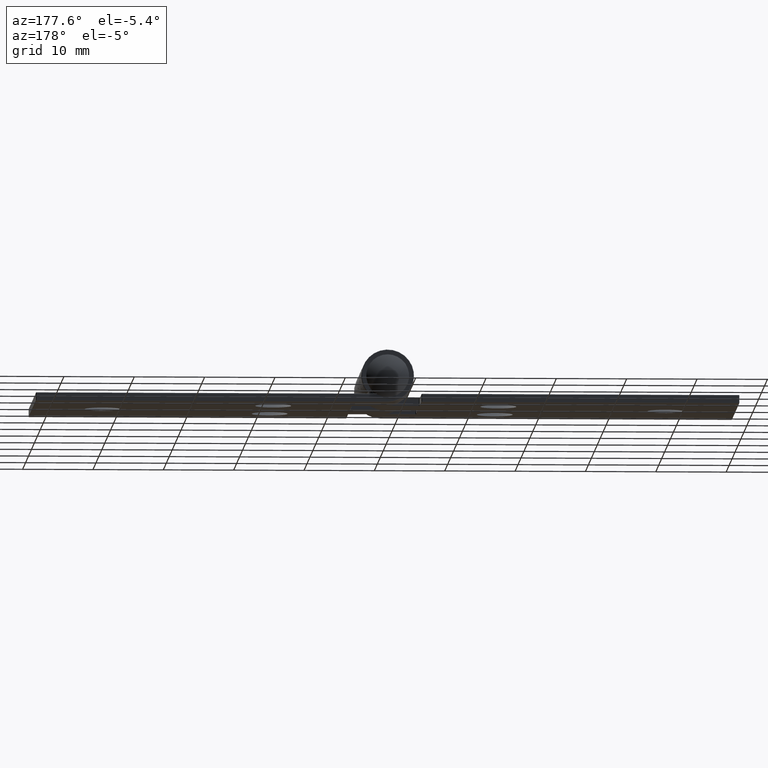
[diagram: clean part render]
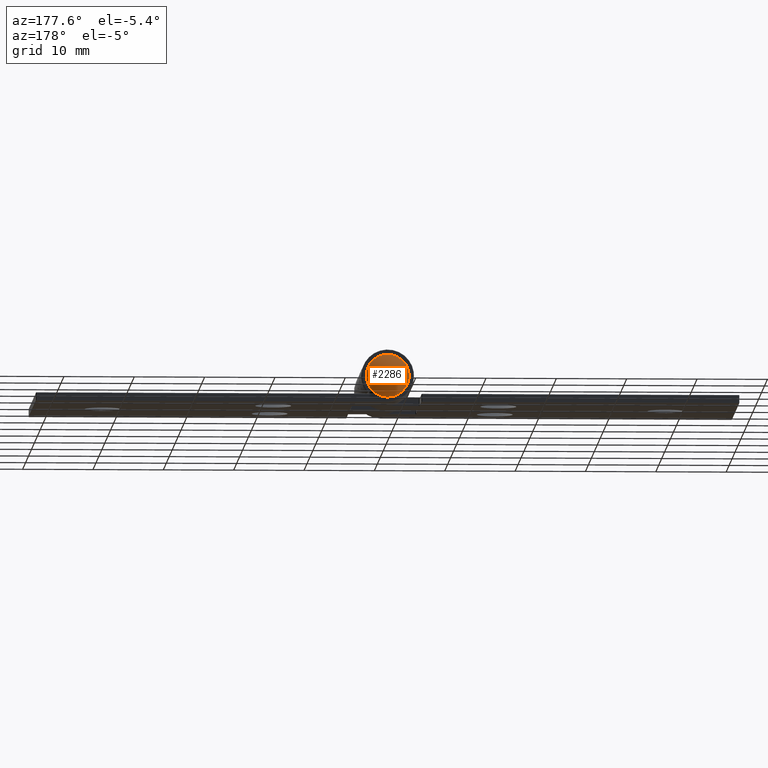
[diagram: same view with one face highlighted and labeled with its STEP entity id]
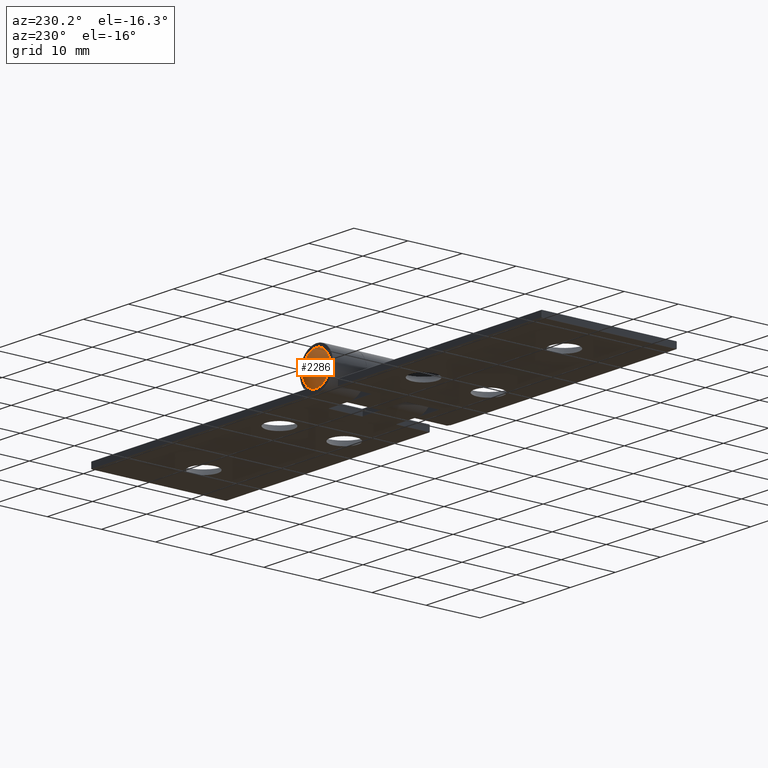
[diagram: same view with one face highlighted and labeled with its STEP entity id]
A machine part, auxiliary view. The second image highlights one B-rep face of the part: STEP entity #2286.
A second angle (auxiliary view) of the same face is appended — the face is thin or edge-on in the first view.
In plain terms, the highlighted spherical surface has radius 5.1513 mm.
Its self-contained STEP definition (entity closure, byte-faithful):
#1594 = DIRECTION ( 'NONE',  ( 0.000000000000000000, 0.000000000000000000, 1.000000000000000000 ) ) ;
#2114 = SPHERICAL_SURFACE ( 'NONE', #2931, 5.151250000000002771 ) ;
#2286 = ADVANCED_FACE ( 'NONE', ( #2637 ), #2114, .T. ) ;
#2394 = EDGE_CURVE ( 'NONE', #2468, #2468, #4185, .T. ) ;
#2468 = VERTEX_POINT ( 'NONE', #3048 ) ;
#2637 = FACE_OUTER_BOUND ( 'NONE', #3425, .T. ) ;
#2931 = AXIS2_PLACEMENT_3D ( 'NONE', #3537, #1594, #3516 ) ;
#3048 = CARTESIAN_POINT ( 'NONE',  ( 0.000000000000000000, 12.55000000000000071, -3.049999999999999378 ) ) ;
#3425 = EDGE_LOOP ( 'NONE', ( #3777 ) ) ;
#3516 = DIRECTION ( 'NONE',  ( 1.000000000000000000, 0.000000000000000000, 0.000000000000000000 ) ) ;
#3537 = CARTESIAN_POINT ( 'NONE',  ( 0.000000000000000000, 8.398749999999996163, 0.000000000000000000 ) ) ;
#3649 = DIRECTION ( 'NONE',  ( 0.000000000000000000, 0.000000000000000000, -1.000000000000000000 ) ) ;
#3777 = ORIENTED_EDGE ( 'NONE', *, *, #2394, .F. ) ;
#3853 = AXIS2_PLACEMENT_3D ( 'NONE', #4047, #4007, #3649 ) ;
#4007 = DIRECTION ( 'NONE',  ( -0.000000000000000000, -1.000000000000000000, -0.000000000000000000 ) ) ;
#4047 = CARTESIAN_POINT ( 'NONE',  ( 0.000000000000000000, 12.55000000000000071, 0.000000000000000000 ) ) ;
#4185 = CIRCLE ( 'NONE', #3853, 3.049999999999999378 ) ;